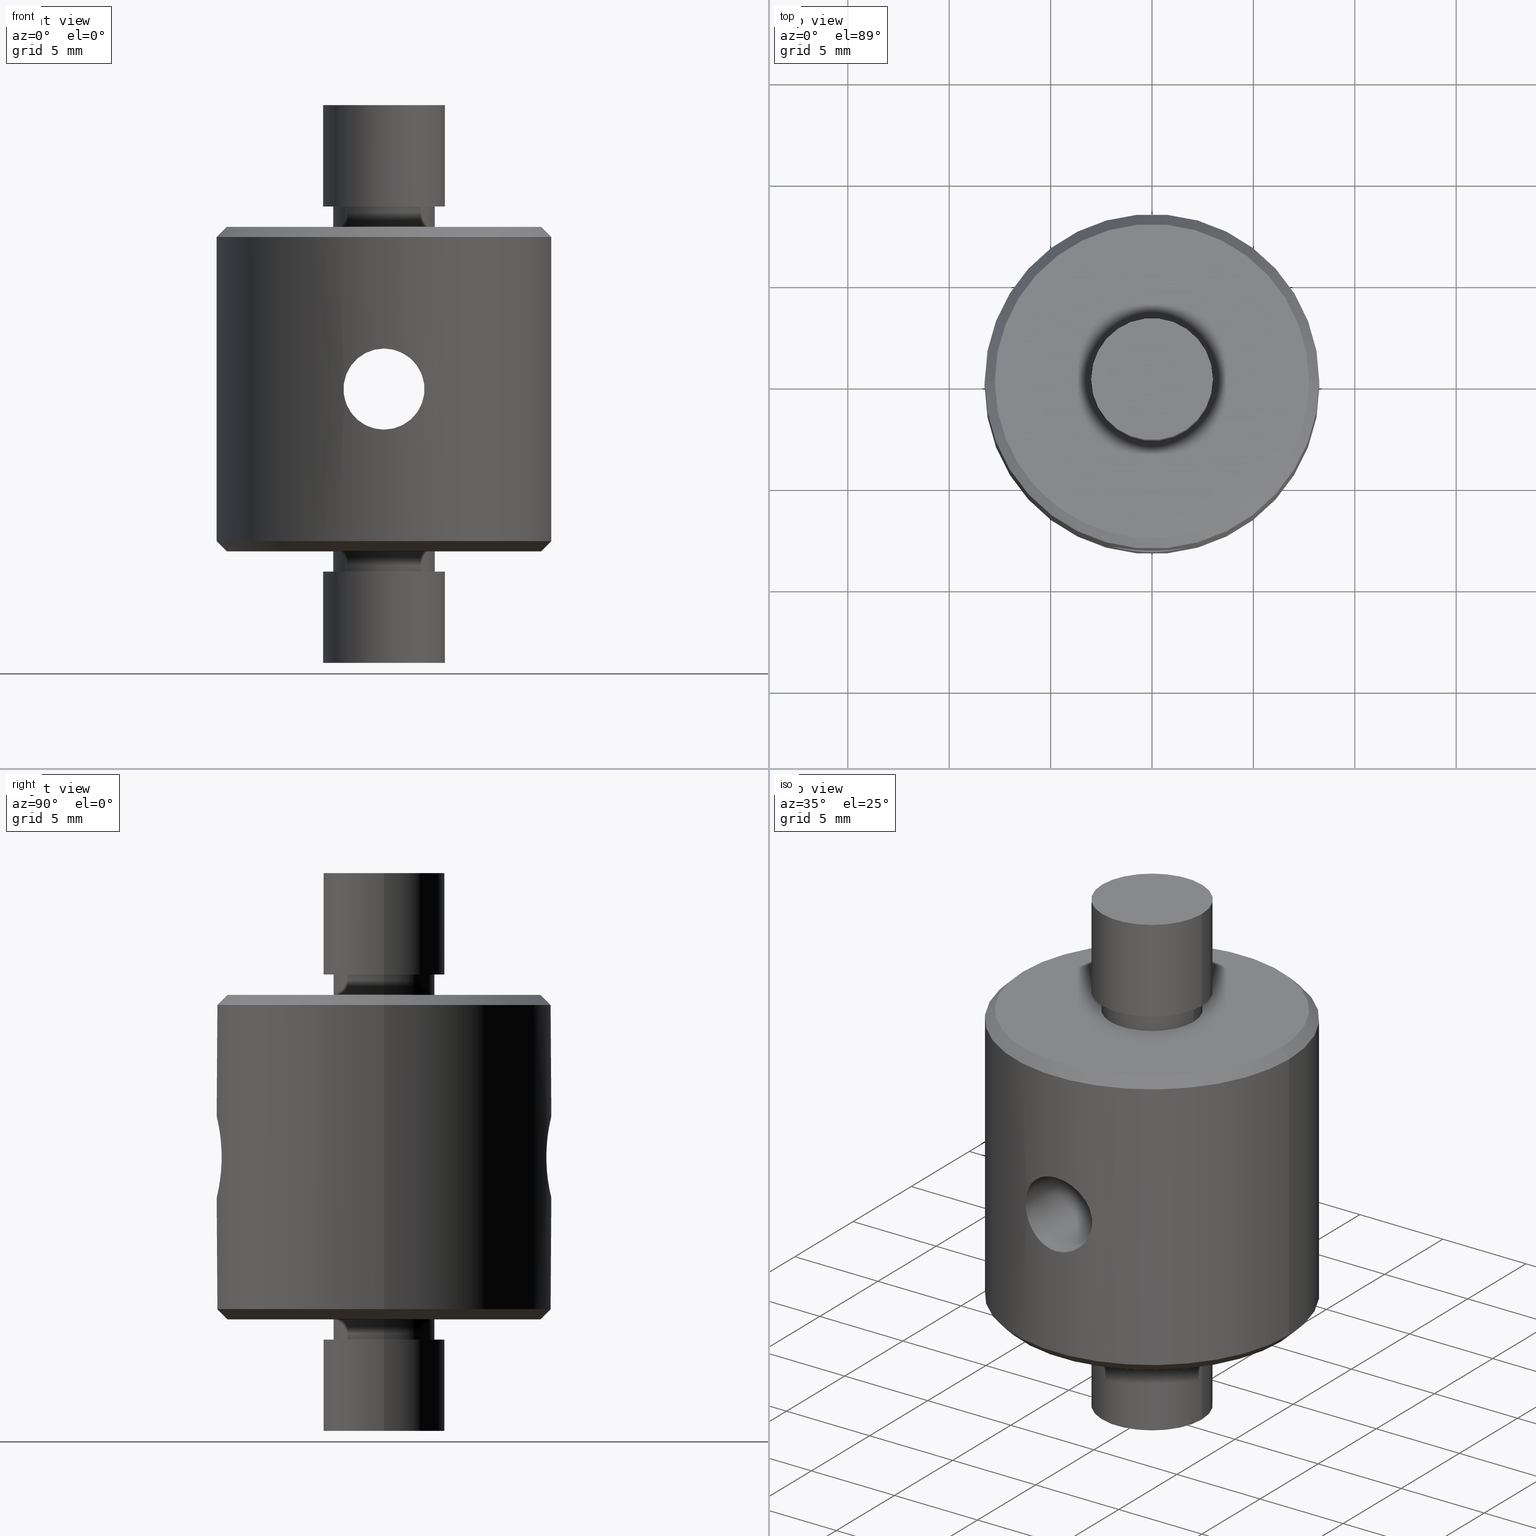
[diagram: canonical four-view strip — front | top / right | iso, engineering-drawing reading convention]
A machine part, canonical four-view strip (front | top / right | iso — engineering-drawing reading convention). The complete STEP part file that produces these views, byte-faithful:
ISO-10303-21;
HEADER;
FILE_DESCRIPTION (( 'STEP AP203' ),
    '1' );
FILE_NAME ('07SRA-1.STEP',
    '2016-04-25T06:13:36',
    ( '' ),
    ( '' ),
    'SwSTEP 2.0',
    'SolidWorks 2016',
    '' );
FILE_SCHEMA (( 'CONFIG_CONTROL_DESIGN' ));
ENDSEC;

DATA;
#1 = CARTESIAN_POINT ( 'NONE',  ( -1.734485429178346700, 8.065947410585693000, -1.004220271036169600 ) ) ;
#2 = CC_DESIGN_SECURITY_CLASSIFICATION ( #406, ( #559 ) ) ;
#3 = PERSON_AND_ORGANIZATION ( #607, #397 ) ;
#4 = CIRCLE ( 'NONE', #578, 7.749999999999991100 ) ;
#5 = ORIENTED_EDGE ( 'NONE', *, *, #19, .F. ) ;
#6 = AXIS2_PLACEMENT_3D ( 'NONE', #533, #10, #188 ) ;
#7 = ORIENTED_EDGE ( 'NONE', *, *, #145, .F. ) ;
#8 = CARTESIAN_POINT ( 'NONE',  ( -7.749999999999991100, 9.797174393178819700E-016, -8.000000000000000000 ) ) ;
#9 = AXIS2_PLACEMENT_3D ( 'NONE', #415, #113, #177 ) ;
#10 = DIRECTION ( 'NONE',  ( 0.0000000000000000000, 0.0000000000000000000, -1.000000000000000000 ) ) ;
#11 = DIRECTION ( 'NONE',  ( 0.0000000000000000000, 0.0000000000000000000, -1.000000000000000000 ) ) ;
#12 = FACE_OUTER_BOUND ( 'NONE', #590, .T. ) ;
#13 = ORIENTED_EDGE ( 'NONE', *, *, #160, .F. ) ;
#14 = CARTESIAN_POINT ( 'NONE',  ( 1.746564404702779300, 8.063665092118787600, -1.009254032915539300 ) ) ;
#15 = EDGE_LOOP ( 'NONE', ( #646, #33 ) ) ;
#16 = DIRECTION ( 'NONE',  ( -0.0000000000000000000, -0.0000000000000000000, 1.000000000000000000 ) ) ;
#17 = DIRECTION ( 'NONE',  ( 0.0000000000000000000, 0.0000000000000000000, 1.000000000000000000 ) ) ;
#18 = DIRECTION ( 'NONE',  ( 1.000000000000000000, 0.0000000000000000000, -0.0000000000000000000 ) ) ;
#19 = EDGE_CURVE ( 'NONE', #66, #226, #692, .T. ) ;
#20 = CARTESIAN_POINT ( 'NONE',  ( -0.5211970916093433500, 8.234531343425429000, 1.935363952460052600 ) ) ;
#21 = CARTESIAN_POINT ( 'NONE',  ( 1.321223466088915300, 8.144060661153183400, -1.507167060968729300 ) ) ;
#22 = EDGE_CURVE ( 'NONE', #470, #651, #70, .T. ) ;
#23 = CARTESIAN_POINT ( 'NONE',  ( -1.746564404702779300, -8.063665092118787600, -1.009254032915539300 ) ) ;
#24 = CIRCLE ( 'NONE', #102, 8.250000000000000000 ) ;
#25 = DIRECTION ( 'NONE',  ( -1.000000000000000000, 0.0000000000000000000, 0.0000000000000000000 ) ) ;
#26 = CARTESIAN_POINT ( 'NONE',  ( -0.8886708092414188400, -8.202897855306337900, 1.796506368153792900 ) ) ;
#27 = COORDINATED_UNIVERSAL_TIME_OFFSET ( 8, 0, .AHEAD. ) ;
#28 = CIRCLE ( 'NONE', #664, 2.500000000000000000 ) ;
#29 = DIRECTION ( 'NONE',  ( 1.000000000000000000, 0.0000000000000000000, 0.0000000000000000000 ) ) ;
#30 = ORIENTED_EDGE ( 'NONE', *, *, #22, .F. ) ;
#31 = AXIS2_PLACEMENT_3D ( 'NONE', #237, #298, #700 ) ;
#32 = CARTESIAN_POINT ( 'NONE',  ( -1.003367067051843800, -8.189490218781173800, 1.735021821357147600 ) ) ;
#33 = ORIENTED_EDGE ( 'NONE', *, *, #721, .T. ) ;
#34 = MECHANICAL_CONTEXT ( 'NONE', #738, 'mechanical' ) ;
#35 = DIRECTION ( 'NONE',  ( -0.7071067811865536800, 0.0000000000000000000, -0.7071067811865414700 ) ) ;
#36 = EDGE_CURVE ( 'NONE', #507, #330, #747, .T. ) ;
#37 = ADVANCED_FACE ( 'NONE', ( #458 ), #294, .T. ) ;
#38 = VECTOR ( 'NONE', #602, 1000.000000000000000 ) ;
#39 = DIRECTION ( 'NONE',  ( 0.0000000000000000000, 0.0000000000000000000, -1.000000000000000000 ) ) ;
#40 = FACE_OUTER_BOUND ( 'NONE', #416, .T. ) ;
#41 = EDGE_LOOP ( 'NONE', ( #239, #736, #539, #241 ) ) ;
#42 = PERSON_AND_ORGANIZATION_ROLE ( 'design_supplier' ) ;
#43 = SECURITY_CLASSIFICATION_LEVEL ( 'unclassified' ) ;
#44 = AXIS2_PLACEMENT_3D ( 'NONE', #431, #11, #663 ) ;
#45 = DIRECTION ( 'NONE',  ( -0.0000000000000000000, -0.0000000000000000000, 1.000000000000000000 ) ) ;
#46 = DIRECTION ( 'NONE',  ( -1.000000000000000000, 0.0000000000000000000, 0.0000000000000000000 ) ) ;
#47 = LINE ( 'NONE', #513, #366 ) ;
#48 = APPROVAL_ROLE ( '' ) ;
#49 = FACE_OUTER_BOUND ( 'NONE', #710, .T. ) ;
#50 = CARTESIAN_POINT ( 'NONE',  ( 0.0000000000000000000, 0.0000000000000000000, 8.000000000000000000 ) ) ;
#51 = EDGE_LOOP ( 'NONE', ( #225, #439 ) ) ;
#52 = CARTESIAN_POINT ( 'NONE',  ( 1.987161606794385400, -8.007145465530605600, 0.2613861231367247700 ) ) ;
#53 = EDGE_LOOP ( 'NONE', ( #719, #417, #564, #454 ) ) ;
#54 = CARTESIAN_POINT ( 'NONE',  ( 1.936141588103510000, -8.019634998458533600, 0.5181599248321968600 ) ) ;
#55 = EDGE_CURVE ( 'NONE', #274, #260, #146, .T. ) ;
#56 = LOCAL_TIME ( 14, 13, 36.00000000000000000, #475 ) ;
#57 = FACE_BOUND ( 'NONE', #110, .T. ) ;
#58 = EDGE_LOOP ( 'NONE', ( #202, #516, #554, #129 ) ) ;
#59 = CARTESIAN_POINT ( 'NONE',  ( -1.796101587691693500, 8.052279829401907600, -0.8895820937560504600 ) ) ;
#60 = AXIS2_PLACEMENT_3D ( 'NONE', #158, #88, #384 ) ;
#61 = CARTESIAN_POINT ( 'NONE',  ( -2.500000000000000000, 3.061616997868383100E-016, -9.000000000000001800 ) ) ;
#62 = CARTESIAN_POINT ( 'NONE',  ( 0.2633971679137698800, -8.246803913401407700, 1.986932804278705100 ) ) ;
#63 = DIRECTION ( 'NONE',  ( -0.0000000000000000000, -0.0000000000000000000, -1.000000000000000000 ) ) ;
#64 = FACE_OUTER_BOUND ( 'NONE', #322, .T. ) ;
#65 = DIRECTION ( 'NONE',  ( -0.0000000000000000000, -0.0000000000000000000, -1.000000000000000000 ) ) ;
#66 = VERTEX_POINT ( 'NONE', #8 ) ;
#67 = CLOSED_SHELL ( 'NONE', ( #154, #734, #385, #743, #693, #37, #156, #394, #577, #95, #258, #103, #208, #446, #442, #100, #333, #86, #327, #579, #168, #631 ) ) ;
#68 = DIRECTION ( 'NONE',  ( 0.7071067811865536800, 8.659560562355009300E-017, -0.7071067811865414700 ) ) ;
#69 = EDGE_CURVE ( 'NONE', #440, #360, #85, .T. ) ;
#70 = B_SPLINE_CURVE_WITH_KNOTS ( 'NONE', 3,
 ( #746, #455, #93, #99, #695, #166, #217, #633, #690, #456, #219, #101, #517, #404, #52, #54, #334, #761, #342, #526, #282, #703, #280, #62, #537, #601 ),
 .UNSPECIFIED., .F., .F.,
 ( 4, 2, 2, 2, 2, 2, 2, 2, 2, 2, 2, 2, 4 ),
 ( 0.006276366173216329500, 0.007060701512947540300, 0.007452869182813145700, 0.007845036852678751900, 0.008237204522544356400, 0.008629372192409962700, 0.009413707532141171700, 0.009805875202006778000, 0.01019804287187238200, 0.01098237821160359300, 0.01176671355133480600, 0.01215888122120041000, 0.01255104889106601500 ),
 .UNSPECIFIED. ) ;
#71 = DIRECTION ( 'NONE',  ( -0.0000000000000000000, -0.0000000000000000000, -1.000000000000000000 ) ) ;
#72 = CARTESIAN_POINT ( 'NONE',  ( -6.789005360349728400E-017, 8.250000000000000000, 2.000000000000000000 ) ) ;
#73 = DIRECTION ( 'NONE',  ( 1.000000000000000000, 0.0000000000000000000, 0.0000000000000000000 ) ) ;
#74 = ORIENTED_EDGE ( 'NONE', *, *, #749, .F. ) ;
#75 = CARTESIAN_POINT ( 'NONE',  ( 0.2630402404011860700, 8.246803709826968600, 1.986929239511523200 ) ) ;
#76 = AXIS2_PLACEMENT_3D ( 'NONE', #324, #571, #511 ) ;
#77 = CARTESIAN_POINT ( 'NONE',  ( 1.004520203861529100, 8.189343423344858800, -1.734320818487681500 ) ) ;
#78 = CARTESIAN_POINT ( 'NONE',  ( -1.599357376057809300, -8.095676499416024200, -1.229142779217262900 ) ) ;
#79 = CARTESIAN_POINT ( 'NONE',  ( -1.897368781442408500, 8.029017936759030900, 0.6457941285481596500 ) ) ;
#80 = CARTESIAN_POINT ( 'NONE',  ( -1.004520203861529100, -8.189343423344858800, -1.734320818487681500 ) ) ;
#81 = LOCAL_TIME ( 14, 13, 36.00000000000000000, #27 ) ;
#82 = COORDINATED_UNIVERSAL_TIME_OFFSET ( 8, 0, .AHEAD. ) ;
#83 = AXIS2_PLACEMENT_3D ( 'NONE', #210, #572, #622 ) ;
#84 = CARTESIAN_POINT ( 'NONE',  ( 3.000000000000000400, 0.0000000000000000000, 9.000000000000001800 ) ) ;
#85 = CIRCLE ( 'NONE', #9, 3.000000000000000400 ) ;
#86 = ADVANCED_FACE ( 'NONE', ( #410 ), #575, .T. ) ;
#87 = ORIENTED_EDGE ( 'NONE', *, *, #69, .F. ) ;
#88 = DIRECTION ( 'NONE',  ( 0.0000000000000000000, 0.0000000000000000000, 1.000000000000000000 ) ) ;
#89 = CARTESIAN_POINT ( 'NONE',  ( -1.999945528447225200, -8.003918908033524500, 0.1318261355252158300 ) ) ;
#90 = CARTESIAN_POINT ( 'NONE',  ( -1.598332908652791100, -8.095838505945714300, 1.229985968183118200 ) ) ;
#91 = APPLICATION_PROTOCOL_DEFINITION ( 'international standard', 'config_control_design', 1994, #450 ) ;
#92 = CARTESIAN_POINT ( 'NONE',  ( -0.2635999258944435300, -8.246795264675656200, -1.986896621537046000 ) ) ;
#93 = CARTESIAN_POINT ( 'NONE',  ( 0.5256441293576987700, -8.236790558271446000, -1.947229364106093600 ) ) ;
#94 = PRODUCT_DEFINITION_SHAPE ( 'NONE', 'NONE',  #235 ) ;
#95 = ADVANCED_FACE ( 'NONE', ( #379 ), #163, .F. ) ;
#96 = CARTESIAN_POINT ( 'NONE',  ( 0.0000000000000000000, 0.0000000000000000000, 9.000000000000001800 ) ) ;
#97 = FACE_BOUND ( 'NONE', #184, .T. ) ;
#98 = ORIENTED_EDGE ( 'NONE', *, *, #178, .T. ) ;
#99 = CARTESIAN_POINT ( 'NONE',  ( 0.8869395704203337800, -8.203076758833363500, -1.797314436934732900 ) ) ;
#100 = ADVANCED_FACE ( 'NONE', ( #248, #97 ), #277, .T. ) ;
#101 = CARTESIAN_POINT ( 'NONE',  ( 1.947787641228585300, -8.017442781952535600, -0.5248544217563377900 ) ) ;
#102 = AXIS2_PLACEMENT_3D ( 'NONE', #363, #16, #423 ) ;
#103 = ADVANCED_FACE ( 'NONE', ( #538, #329 ), #640, .F. ) ;
#104 = CALENDAR_DATE ( 2016, 25, 4 ) ;
#105 = CC_DESIGN_PERSON_AND_ORGANIZATION_ASSIGNMENT ( #659, #209, ( #547 ) ) ;
#106 = PERSON_AND_ORGANIZATION ( #607, #397 ) ;
#107 = CARTESIAN_POINT ( 'NONE',  ( 8.250000000000000000, 0.0000000000000000000, -13.50000000000000000 ) ) ;
#108 = ORIENTED_EDGE ( 'NONE', *, *, #55, .F. ) ;
#109 = ORIENTED_EDGE ( 'NONE', *, *, #343, .T. ) ;
#110 = EDGE_LOOP ( 'NONE', ( #220, #414 ) ) ;
#111 = DIRECTION ( 'NONE',  ( -1.000000000000000000, 0.0000000000000000000, 0.0000000000000000000 ) ) ;
#112 = DIRECTION ( 'NONE',  ( 0.0000000000000000000, 0.0000000000000000000, 1.000000000000000000 ) ) ;
#113 = DIRECTION ( 'NONE',  ( -0.0000000000000000000, -0.0000000000000000000, 1.000000000000000000 ) ) ;
#114 = EDGE_CURVE ( 'NONE', #260, #608, #532, .T. ) ;
#115 = DIRECTION ( 'NONE',  ( 1.000000000000000000, 0.0000000000000000000, 0.0000000000000000000 ) ) ;
#116 = LOCAL_TIME ( 14, 13, 36.00000000000000000, #267 ) ;
#117 = FACE_BOUND ( 'NONE', #599, .T. ) ;
#118 = CARTESIAN_POINT ( 'NONE',  ( 3.000000000000000400, 3.673940397442060400E-016, -9.000000000000001800 ) ) ;
#119 = ORIENTED_EDGE ( 'NONE', *, *, #624, .F. ) ;
#120 = ORIENTED_EDGE ( 'NONE', *, *, #512, .T. ) ;
#121 = EDGE_CURVE ( 'NONE', #360, #195, #753, .T. ) ;
#122 = AXIS2_PLACEMENT_3D ( 'NONE', #619, #265, #688 ) ;
#123 = CC_DESIGN_DATE_AND_TIME_ASSIGNMENT ( #514, #638, ( #406 ) ) ;
#124 = AXIS2_PLACEMENT_3D ( 'NONE', #175, #472, #464 ) ;
#125 = DIRECTION ( 'NONE',  ( 0.0000000000000000000, 0.0000000000000000000, 1.000000000000000000 ) ) ;
#126 = FACE_OUTER_BOUND ( 'NONE', #702, .T. ) ;
#127 = CARTESIAN_POINT ( 'NONE',  ( 0.0000000000000000000, 0.0000000000000000000, 9.000000000000001800 ) ) ;
#128 = VECTOR ( 'NONE', #369, 1000.000000000000000 ) ;
#129 = ORIENTED_EDGE ( 'NONE', *, *, #581, .F. ) ;
#130 = DIRECTION ( 'NONE',  ( -0.0000000000000000000, -0.0000000000000000000, 1.000000000000000000 ) ) ;
#131 = EDGE_LOOP ( 'NONE', ( #141, #203, #567, #618 ) ) ;
#132 = CARTESIAN_POINT ( 'NONE',  ( 0.0000000000000000000, -10.00000000000000000, 0.0000000000000000000 ) ) ;
#133 = AXIS2_PLACEMENT_3D ( 'NONE', #666, #300, #493 ) ;
#134 = DIRECTION ( 'NONE',  ( -0.0000000000000000000, -0.0000000000000000000, -1.000000000000000000 ) ) ;
#135 = CARTESIAN_POINT ( 'NONE',  ( -3.000000000000000400, 3.673940397442060400E-016, 8.000000000000000000 ) ) ;
#136 = CARTESIAN_POINT ( 'NONE',  ( 2.449293598294706400E-016, -10.00000000000000000, -2.000000000000000000 ) ) ;
#137 = DIRECTION ( 'NONE',  ( -0.0000000000000000000, -0.0000000000000000000, 1.000000000000000000 ) ) ;
#138 = CIRCLE ( 'NONE', #76, 7.749999999999989300 ) ;
#139 = LINE ( 'NONE', #612, #38 ) ;
#140 = ORIENTED_EDGE ( 'NONE', *, *, #451, .T. ) ;
#141 = ORIENTED_EDGE ( 'NONE', *, *, #145, .T. ) ;
#142 = DIRECTION ( 'NONE',  ( 0.0000000000000000000, 0.0000000000000000000, 1.000000000000000000 ) ) ;
#143 = CARTESIAN_POINT ( 'NONE',  ( 1.598332908652791100, 8.095838505945714300, 1.229985968183118200 ) ) ;
#144 = CARTESIAN_POINT ( 'NONE',  ( 0.8873435543799543800, 8.203037833527066200, -1.797140462901066500 ) ) ;
#145 = EDGE_CURVE ( 'NONE', #507, #490, #24, .T. ) ;
#146 = CIRCLE ( 'NONE', #357, 3.000000000000000400 ) ;
#147 = CARTESIAN_POINT ( 'NONE',  ( 1.220760633113353400, 8.159911152830549200, -1.589551200196607200 ) ) ;
#148 = ORIENTED_EDGE ( 'NONE', *, *, #535, .F. ) ;
#149 = CARTESIAN_POINT ( 'NONE',  ( -0.2630402404011860700, -8.246803709826968600, 1.986929239511523200 ) ) ;
#150 = ORIENTED_EDGE ( 'NONE', *, *, #343, .F. ) ;
#151 = APPROVAL ( #263, 'UNSPECIFIED' ) ;
#152 = DIRECTION ( 'NONE',  ( 0.0000000000000000000, 0.0000000000000000000, 1.000000000000000000 ) ) ;
#153 = EDGE_CURVE ( 'NONE', #287, #635, #273, .T. ) ;
#154 = ADVANCED_FACE ( 'NONE', ( #40 ), #681, .T. ) ;
#155 = CARTESIAN_POINT ( 'NONE',  ( -0.1326771134377834100, -8.250000000000000000, 2.000000000000000000 ) ) ;
#156 = ADVANCED_FACE ( 'NONE', ( #732 ), #530, .F. ) ;
#157 = CALENDAR_DATE ( 2016, 25, 4 ) ;
#158 = CARTESIAN_POINT ( 'NONE',  ( 0.0000000000000000000, 0.0000000000000000000, 14.00000000000000000 ) ) ;
#159 = FACE_OUTER_BOUND ( 'NONE', #58, .T. ) ;
#160 = EDGE_CURVE ( 'NONE', #360, #440, #162, .T. ) ;
#161 = CARTESIAN_POINT ( 'NONE',  ( 2.500000000000000000, 0.0000000000000000000, -9.000000000000001800 ) ) ;
#162 = CIRCLE ( 'NONE', #413, 3.000000000000000400 ) ;
#163 = CYLINDRICAL_SURFACE ( 'NONE', #656, 2.000000000000000000 ) ;
#164 = VERTEX_POINT ( 'NONE', #489 ) ;
#165 = CARTESIAN_POINT ( 'NONE',  ( 0.0000000000000000000, 0.0000000000000000000, -8.000000000000000000 ) ) ;
#166 = CARTESIAN_POINT ( 'NONE',  ( 1.221030223150371400, -8.159876887627760300, -1.589387696022922700 ) ) ;
#167 = EDGE_CURVE ( 'NONE', #305, #330, #368, .T. ) ;
#168 = ADVANCED_FACE ( 'NONE', ( #438 ), #246, .F. ) ;
#169 = AXIS2_PLACEMENT_3D ( 'NONE', #704, #641, #111 ) ;
#170 = EDGE_LOOP ( 'NONE', ( #120, #348 ) ) ;
#171 = ORIENTED_EDGE ( 'NONE', *, *, #637, .T. ) ;
#172 = PLANE ( 'NONE',  #206 ) ;
#173 = AXIS2_PLACEMENT_3D ( 'NONE', #534, #63, #481 ) ;
#174 = DATE_AND_TIME ( #157, #81 ) ;
#175 = CARTESIAN_POINT ( 'NONE',  ( 0.0000000000000000000, 0.0000000000000000000, -13.50000000000000000 ) ) ;
#176 = LINE ( 'NONE', #61, #257 ) ;
#177 = DIRECTION ( 'NONE',  ( -1.000000000000000000, 0.0000000000000000000, 0.0000000000000000000 ) ) ;
#178 = EDGE_CURVE ( 'NONE', #226, #507, #339, .T. ) ;
#179 = ORIENTED_EDGE ( 'NONE', *, *, #222, .T. ) ;
#180 = DIRECTION ( 'NONE',  ( 1.000000000000000000, 0.0000000000000000000, 0.0000000000000000000 ) ) ;
#181 = CC_DESIGN_PERSON_AND_ORGANIZATION_ASSIGNMENT ( #486, #519, ( #406 ) ) ;
#182 = DIRECTION ( 'NONE',  ( -1.000000000000000000, 0.0000000000000000000, 0.0000000000000000000 ) ) ;
#183 = DIRECTION ( 'NONE',  ( -0.0000000000000000000, 1.000000000000000000, -0.0000000000000000000 ) ) ;
#184 = EDGE_LOOP ( 'NONE', ( #297, #748 ) ) ;
#185 = ORIENTED_EDGE ( 'NONE', *, *, #167, .T. ) ;
#186 = AXIS2_PLACEMENT_3D ( 'NONE', #492, #71, #610 ) ;
#187 = ORIENTED_EDGE ( 'NONE', *, *, #721, .F. ) ;
#188 = DIRECTION ( 'NONE',  ( -1.000000000000000000, 0.0000000000000000000, 0.0000000000000000000 ) ) ;
#189 = DIRECTION ( 'NONE',  ( 1.000000000000000000, 0.0000000000000000000, 0.0000000000000000000 ) ) ;
#190 = CC_DESIGN_APPROVAL ( #151, ( #559 ) ) ;
#191 = CARTESIAN_POINT ( 'NONE',  ( 0.0000000000000000000, -10.00000000000000000, 2.000000000000000000 ) ) ;
#192 = CARTESIAN_POINT ( 'NONE',  ( 2.449279156765281000E-016, 8.250000000000000000, -2.000000000000000000 ) ) ;
#193 = ORIENTED_EDGE ( 'NONE', *, *, #121, .F. ) ;
#194 = CARTESIAN_POINT ( 'NONE',  ( -1.003891274059350200, 8.189426593904842700, -1.734724866940920800 ) ) ;
#195 = VERTEX_POINT ( 'NONE', #720 ) ;
#196 = CARTESIAN_POINT ( 'NONE',  ( 0.0000000000000000000, -10.00000000000000000, 0.0000000000000000000 ) ) ;
#197 = CARTESIAN_POINT ( 'NONE',  ( 1.987145896334996400, 8.007150238837752500, 0.2619363400058078400 ) ) ;
#198 = DIRECTION ( 'NONE',  ( 0.0000000000000000000, 0.0000000000000000000, 1.000000000000000000 ) ) ;
#199 = CARTESIAN_POINT ( 'NONE',  ( -1.009530896751481100, 8.191567199673246000, 1.746084158701253200 ) ) ;
#200 = CYLINDRICAL_SURFACE ( 'NONE', #124, 8.250000000000000000 ) ;
#201 = DIRECTION ( 'NONE',  ( -0.0000000000000000000, -0.0000000000000000000, -1.000000000000000000 ) ) ;
#202 = ORIENTED_EDGE ( 'NONE', *, *, #548, .F. ) ;
#203 = ORIENTED_EDGE ( 'NONE', *, *, #255, .T. ) ;
#204 = CARTESIAN_POINT ( 'NONE',  ( 0.0000000000000000000, 0.0000000000000000000, 8.000000000000000000 ) ) ;
#205 = CC_DESIGN_APPROVAL ( #350, ( #406 ) ) ;
#206 = AXIS2_PLACEMENT_3D ( 'NONE', #527, #756, #587 ) ;
#207 = DIRECTION ( 'NONE',  ( 0.0000000000000000000, 0.0000000000000000000, -1.000000000000000000 ) ) ;
#208 = ADVANCED_FACE ( 'NONE', ( #247 ), #312, .T. ) ;
#209 = PERSON_AND_ORGANIZATION_ROLE ( 'design_owner' ) ;
#210 = CARTESIAN_POINT ( 'NONE',  ( 0.0000000000000000000, 0.0000000000000000000, -9.000000000000001800 ) ) ;
#211 = LINE ( 'NONE', #544, #448 ) ;
#212 = FACE_OUTER_BOUND ( 'NONE', #271, .T. ) ;
#213 = ORIENTED_EDGE ( 'NONE', *, *, #388, .F. ) ;
#214 = CARTESIAN_POINT ( 'NONE',  ( -2.500000000000000000, 0.0000000000000000000, 8.000000000000000000 ) ) ;
#215 = ORIENTED_EDGE ( 'NONE', *, *, #707, .T. ) ;
#216 = CARTESIAN_POINT ( 'NONE',  ( 0.0000000000000000000, 0.0000000000000000000, 0.0000000000000000000 ) ) ;
#217 = CARTESIAN_POINT ( 'NONE',  ( 1.321366810000156500, -8.144031804710421000, -1.506980075174842300 ) ) ;
#218 = VECTOR ( 'NONE', #256, 1000.000000000000000 ) ;
#219 = CARTESIAN_POINT ( 'NONE',  ( 1.796101587691693500, -8.052279829401907600, -0.8895820937560504600 ) ) ;
#220 = ORIENTED_EDGE ( 'NONE', *, *, #660, .F. ) ;
#221 = ORIENTED_EDGE ( 'NONE', *, *, #739, .T. ) ;
#222 = EDGE_CURVE ( 'NONE', #317, #305, #745, .T. ) ;
#223 = CC_DESIGN_PERSON_AND_ORGANIZATION_ASSIGNMENT ( #495, #750, ( #559 ) ) ;
#224 = DIRECTION ( 'NONE',  ( -0.0000000000000000000, -0.0000000000000000000, -1.000000000000000000 ) ) ;
#225 = ORIENTED_EDGE ( 'NONE', *, *, #451, .F. ) ;
#226 = VERTEX_POINT ( 'NONE', #668 ) ;
#227 = AXIS2_PLACEMENT_3D ( 'NONE', #600, #125, #596 ) ;
#228 = DIRECTION ( 'NONE',  ( -0.0000000000000000000, -0.0000000000000000000, -1.000000000000000000 ) ) ;
#229 = DIRECTION ( 'NONE',  ( -0.0000000000000000000, -0.0000000000000000000, -1.000000000000000000 ) ) ;
#230 = CARTESIAN_POINT ( 'NONE',  ( 2.449279156765281000E-016, 8.250000000000000000, -2.000000000000000000 ) ) ;
#231 = LINE ( 'NONE', #136, #604 ) ;
#232 = CIRCLE ( 'NONE', #351, 2.500000000000000000 ) ;
#233 = ORIENTED_EDGE ( 'NONE', *, *, #697, .F. ) ;
#234 = CARTESIAN_POINT ( 'NONE',  ( -1.221030223150371400, 8.159876887627760300, -1.589387696022922700 ) ) ;
#235 = PRODUCT_DEFINITION ( 'UNKNOWN', '', #559, #765 ) ;
#236 = CARTESIAN_POINT ( 'NONE',  ( -1.999909263040937000, 8.003927969961225100, -0.2645583643814337600 ) ) ;
#237 = CARTESIAN_POINT ( 'NONE',  ( 0.0000000000000000000, 0.0000000000000000000, -8.000000000000000000 ) ) ;
#238 = DIRECTION ( 'NONE',  ( 0.0000000000000000000, 0.0000000000000000000, 1.000000000000000000 ) ) ;
#239 = ORIENTED_EDGE ( 'NONE', *, *, #255, .F. ) ;
#240 = AXIS2_PLACEMENT_3D ( 'NONE', #386, #315, #433 ) ;
#241 = ORIENTED_EDGE ( 'NONE', *, *, #749, .T. ) ;
#242 = CARTESIAN_POINT ( 'NONE',  ( -0.5256441293576987700, 8.236790558271446000, -1.947229364106093600 ) ) ;
#243 = CARTESIAN_POINT ( 'NONE',  ( 8.250000000000000000, 1.010333609296566500E-015, 7.499999999999998200 ) ) ;
#244 = CARTESIAN_POINT ( 'NONE',  ( 0.5193570997923324700, 8.234635984631101000, 1.935806336850731900 ) ) ;
#245 = APPROVAL_PERSON_ORGANIZATION ( #715, #151, #48 ) ;
#246 = PLANE ( 'NONE',  #735 ) ;
#247 = FACE_OUTER_BOUND ( 'NONE', #261, .T. ) ;
#248 = FACE_OUTER_BOUND ( 'NONE', #661, .T. ) ;
#249 = CARTESIAN_POINT ( 'NONE',  ( -1.747216188800824900, 8.063515664767722400, 1.007704811256960700 ) ) ;
#250 = ORIENTED_EDGE ( 'NONE', *, *, #167, .F. ) ;
#251 = CARTESIAN_POINT ( 'NONE',  ( 3.000000000000000400, 3.673940397442060400E-016, -8.000000000000000000 ) ) ;
#252 = CARTESIAN_POINT ( 'NONE',  ( 0.8886708092414188400, 8.202897855306337900, 1.796506368153792900 ) ) ;
#253 = PLANE ( 'NONE',  #133 ) ;
#254 = CARTESIAN_POINT ( 'NONE',  ( 1.747129177818576000, 8.063531605375777300, 1.007640096485658400 ) ) ;
#255 = EDGE_CURVE ( 'NONE', #490, #477, #409, .T. ) ;
#256 = DIRECTION ( 'NONE',  ( 0.0000000000000000000, 0.0000000000000000000, -1.000000000000000000 ) ) ;
#257 = VECTOR ( 'NONE', #238, 1000.000000000000000 ) ;
#258 = ADVANCED_FACE ( 'NONE', ( #644, #284 ), #253, .T. ) ;
#259 = CARTESIAN_POINT ( 'NONE',  ( 7.749999999999989300, 9.797174393178819700E-016, 8.000000000000000000 ) ) ;
#260 = VERTEX_POINT ( 'NONE', #552 ) ;
#261 = EDGE_LOOP ( 'NONE', ( #566, #213, #461, #140 ) ) ;
#262 = APPROVAL_ROLE ( '' ) ;
#263 = APPROVAL_STATUS ( 'not_yet_approved' ) ;
#264 = CARTESIAN_POINT ( 'NONE',  ( -0.5193570997923324700, -8.234635984631101000, 1.935806336850731900 ) ) ;
#265 = DIRECTION ( 'NONE',  ( 0.0000000000000000000, 0.0000000000000000000, 1.000000000000000000 ) ) ;
#266 = EDGE_CURVE ( 'NONE', #682, #286, #139, .T. ) ;
#267 = COORDINATED_UNIVERSAL_TIME_OFFSET ( 8, 0, .AHEAD. ) ;
#268 = VECTOR ( 'NONE', #654, 1000.000000000000000 ) ;
#269 = CARTESIAN_POINT ( 'NONE',  ( 0.0000000000000000000, 0.0000000000000000000, 7.499999999999998200 ) ) ;
#270 = ORIENTED_EDGE ( 'NONE', *, *, #153, .T. ) ;
#271 = EDGE_LOOP ( 'NONE', ( #636, #108, #617, #683 ) ) ;
#272 = CALENDAR_DATE ( 2016, 25, 4 ) ;
#273 = LINE ( 'NONE', #584, #128 ) ;
#274 = VERTEX_POINT ( 'NONE', #84 ) ;
#275 = VERTEX_POINT ( 'NONE', #421 ) ;
#276 = CARTESIAN_POINT ( 'NONE',  ( 0.0000000000000000000, 0.0000000000000000000, -8.000000000000000000 ) ) ;
#277 = PLANE ( 'NONE',  #31 ) ;
#278 = EDGE_CURVE ( 'NONE', #440, #500, #358, .T. ) ;
#279 = CARTESIAN_POINT ( 'NONE',  ( 2.449308039802920400E-016, -8.250000000000000000, -2.000000000000000000 ) ) ;
#280 = CARTESIAN_POINT ( 'NONE',  ( 0.5211970916093433500, -8.234531343425429000, 1.935363952460052600 ) ) ;
#281 = DIRECTION ( 'NONE',  ( 1.000000000000000000, 0.0000000000000000000, 0.0000000000000000000 ) ) ;
#282 = CARTESIAN_POINT ( 'NONE',  ( 1.009530896751481100, -8.191567199673246000, 1.746084158701253200 ) ) ;
#283 = CYLINDRICAL_SURFACE ( 'NONE', #122, 2.500000000000000000 ) ;
#284 = FACE_BOUND ( 'NONE', #51, .T. ) ;
#285 = CARTESIAN_POINT ( 'NONE',  ( 8.250000000000000000, 0.0000000000000000000, -7.499999999999996400 ) ) ;
#286 = VERTEX_POINT ( 'NONE', #214 ) ;
#287 = VERTEX_POINT ( 'NONE', #161 ) ;
#288 = AXIS2_PLACEMENT_3D ( 'NONE', #662, #499, #25 ) ;
#289 = DIRECTION ( 'NONE',  ( 0.0000000000000000000, 0.0000000000000000000, -1.000000000000000000 ) ) ;
#290 = CARTESIAN_POINT ( 'NONE',  ( -0.2615629039225235700, 8.250000000000000000, -2.000000000000000400 ) ) ;
#291 = CARTESIAN_POINT ( 'NONE',  ( -1.987161606794385400, 8.007145465530605600, 0.2613861231367247700 ) ) ;
#292 = APPROVAL_PERSON_ORGANIZATION ( #642, #350, #331 ) ;
#293 = CIRCLE ( 'NONE', #173, 3.000000000000000400 ) ;
#294 = CYLINDRICAL_SURFACE ( 'NONE', #485, 2.500000000000000000 ) ;
#295 = ORIENTED_EDGE ( 'NONE', *, *, #55, .T. ) ;
#296 = DIRECTION ( 'NONE',  ( -1.000000000000000000, 0.0000000000000000000, 0.0000000000000000000 ) ) ;
#297 = ORIENTED_EDGE ( 'NONE', *, *, #634, .F. ) ;
#298 = DIRECTION ( 'NONE',  ( 0.0000000000000000000, 0.0000000000000000000, -1.000000000000000000 ) ) ;
#299 = DIRECTION ( 'NONE',  ( 0.0000000000000000000, 0.0000000000000000000, 1.000000000000000000 ) ) ;
#300 = DIRECTION ( 'NONE',  ( 0.0000000000000000000, 0.0000000000000000000, 1.000000000000000000 ) ) ;
#301 = DIRECTION ( 'NONE',  ( 0.0000000000000000000, 0.0000000000000000000, 1.000000000000000000 ) ) ;
#302 = FACE_OUTER_BOUND ( 'NONE', #401, .T. ) ;
#303 = CARTESIAN_POINT ( 'NONE',  ( 0.2635999258944435300, 8.246795264675656200, -1.986896621537046000 ) ) ;
#304 = VECTOR ( 'NONE', #68, 1000.000000000000000 ) ;
#305 = VERTEX_POINT ( 'NONE', #259 ) ;
#306 = ORIENTED_EDGE ( 'NONE', *, *, #69, .T. ) ;
#307 = CARTESIAN_POINT ( 'NONE',  ( -2.500000000000000000, 0.0000000000000000000, 9.000000000000001800 ) ) ;
#308 = CARTESIAN_POINT ( 'NONE',  ( 0.0000000000000000000, 0.0000000000000000000, 8.000000000000000000 ) ) ;
#309 = CARTESIAN_POINT ( 'NONE',  ( 1.003367067051843800, 8.189490218781173800, 1.735021821357147600 ) ) ;
#310 = CARTESIAN_POINT ( 'NONE',  ( -1.747129177818576000, -8.063531605375777300, 1.007640096485658400 ) ) ;
#311 = APPROVAL ( #621, 'UNSPECIFIED' ) ;
#312 = CYLINDRICAL_SURFACE ( 'NONE', #44, 2.500000000000000000 ) ;
#313 = EDGE_LOOP ( 'NONE', ( #109, #576, #701, #670 ) ) ;
#314 = CARTESIAN_POINT ( 'NONE',  ( 0.6458375426091315100, 8.225576098385614500, -1.897362984632226000 ) ) ;
#315 = DIRECTION ( 'NONE',  ( -0.0000000000000000000, -0.0000000000000000000, 1.000000000000000000 ) ) ;
#316 = AXIS2_PLACEMENT_3D ( 'NONE', #709, #405, #180 ) ;
#317 = VERTEX_POINT ( 'NONE', #374 ) ;
#318 = DIRECTION ( 'NONE',  ( 0.0000000000000000000, 0.0000000000000000000, 1.000000000000000000 ) ) ;
#319 = EDGE_CURVE ( 'NONE', #582, #716, #488, .T. ) ;
#320 = CARTESIAN_POINT ( 'NONE',  ( 2.500000000000000000, 3.061616997868383100E-016, 8.000000000000000000 ) ) ;
#321 = CONICAL_SURFACE ( 'NONE', #240, 8.250000000000000000, 0.7853981633974533900 ) ;
#322 = EDGE_LOOP ( 'NONE', ( #616, #148, #270, #598 ) ) ;
#323 = CARTESIAN_POINT ( 'NONE',  ( 0.0000000000000000000, 0.0000000000000000000, -7.499999999999996400 ) ) ;
#324 = CARTESIAN_POINT ( 'NONE',  ( 0.0000000000000000000, 0.0000000000000000000, 8.000000000000000000 ) ) ;
#325 = CC_DESIGN_PERSON_AND_ORGANIZATION_ASSIGNMENT ( #106, #623, ( #235 ) ) ;
#326 = DIRECTION ( 'NONE',  ( -1.000000000000000000, 0.0000000000000000000, 0.0000000000000000000 ) ) ;
#327 = ADVANCED_FACE ( 'NONE', ( #12, #650 ), #740, .F. ) ;
#328 = CIRCLE ( 'NONE', #483, 3.000000000000000400 ) ;
#329 = FACE_BOUND ( 'NONE', #15, .T. ) ;
#330 = VERTEX_POINT ( 'NONE', #506 ) ;
#331 = APPROVAL_ROLE ( '' ) ;
#332 = AXIS2_PLACEMENT_3D ( 'NONE', #389, #39, #326 ) ;
#333 = ADVANCED_FACE ( 'NONE', ( #606 ), #321, .T. ) ;
#334 = CARTESIAN_POINT ( 'NONE',  ( 1.897368781442408500, -8.029017936759030900, 0.6457941285481596500 ) ) ;
#335 = DIRECTION ( 'NONE',  ( -1.000000000000000000, 0.0000000000000000000, 0.0000000000000000000 ) ) ;
#336 = AXIS2_PLACEMENT_3D ( 'NONE', #639, #45, #412 ) ;
#337 = CARTESIAN_POINT ( 'NONE',  ( -8.250000000000000000, 1.010333609296566500E-015, -7.499999999999996400 ) ) ;
#338 = CIRCLE ( 'NONE', #60, 3.000000000000000400 ) ;
#339 = LINE ( 'NONE', #361, #476 ) ;
#340 = ORIENTED_EDGE ( 'NONE', *, *, #19, .T. ) ;
#341 = ORIENTED_EDGE ( 'NONE', *, *, #739, .F. ) ;
#342 = CARTESIAN_POINT ( 'NONE',  ( 1.598501874800889500, -8.095799503385800100, 1.229709723365947300 ) ) ;
#343 = EDGE_CURVE ( 'NONE', #651, #470, #593, .T. ) ;
#344 = CARTESIAN_POINT ( 'NONE',  ( -8.250000000000000000, 1.010333609296566500E-015, 7.499999999999998200 ) ) ;
#345 = VECTOR ( 'NONE', #647, 1000.000000000000000 ) ;
#346 = CARTESIAN_POINT ( 'NONE',  ( -1.589900384508794200, 8.095687994340249100, -1.220292925543182900 ) ) ;
#347 = ORIENTED_EDGE ( 'NONE', *, *, #178, .F. ) ;
#348 = ORIENTED_EDGE ( 'NONE', *, *, #624, .T. ) ;
#349 = CARTESIAN_POINT ( 'NONE',  ( 0.0000000000000000000, 0.0000000000000000000, 14.00000000000000000 ) ) ;
#350 = APPROVAL ( #752, 'UNSPECIFIED' ) ;
#351 = AXIS2_PLACEMENT_3D ( 'NONE', #50, #764, #281 ) ;
#352 = CARTESIAN_POINT ( 'NONE',  ( 0.0000000000000000000, 0.0000000000000000000, -9.000000000000001800 ) ) ;
#353 = CARTESIAN_POINT ( 'NONE',  ( 0.0000000000000000000, 0.0000000000000000000, 7.499999999999998200 ) ) ;
#354 = MANIFOLD_SOLID_BREP ( '����6', #67 ) ;
#355 = DIRECTION ( 'NONE',  ( 1.000000000000000000, 0.0000000000000000000, 0.0000000000000000000 ) ) ;
#356 = DIRECTION ( 'NONE',  ( -0.0000000000000000000, 1.000000000000000000, -0.0000000000000000000 ) ) ;
#357 = AXIS2_PLACEMENT_3D ( 'NONE', #127, #229, #189 ) ;
#358 = LINE ( 'NONE', #251, #762 ) ;
#359 = VERTEX_POINT ( 'NONE', #376 ) ;
#360 = VERTEX_POINT ( 'NONE', #737 ) ;
#361 = CARTESIAN_POINT ( 'NONE',  ( 8.250000000000000000, 0.0000000000000000000, -7.499999999999996400 ) ) ;
#362 = CARTESIAN_POINT ( 'NONE',  ( 0.1326771134377834100, 8.250000000000000000, 2.000000000000000000 ) ) ;
#363 = CARTESIAN_POINT ( 'NONE',  ( 0.0000000000000000000, 0.0000000000000000000, -7.499999999999996400 ) ) ;
#364 = CARTESIAN_POINT ( 'NONE',  ( -1.231581452474026900, 8.159680445255538900, 1.597060228483784700 ) ) ;
#365 = CC_DESIGN_PERSON_AND_ORGANIZATION_ASSIGNMENT ( #3, #42, ( #559 ) ) ;
#366 = VECTOR ( 'NONE', #35, 1000.000000000000000 ) ;
#367 = CARTESIAN_POINT ( 'NONE',  ( 0.6466695324974537400, 8.225514424492038400, 1.897100275092082700 ) ) ;
#368 = LINE ( 'NONE', #243, #304 ) ;
#369 = DIRECTION ( 'NONE',  ( 0.0000000000000000000, 0.0000000000000000000, 1.000000000000000000 ) ) ;
#370 = VERTEX_POINT ( 'NONE', #230 ) ;
#371 = CARTESIAN_POINT ( 'NONE',  ( -2.000054127914221900, -8.003891771416318700, -0.1301680920073833000 ) ) ;
#372 = CARTESIAN_POINT ( 'NONE',  ( -0.6485373955294846400, 8.225357481663911200, 1.896415006476869200 ) ) ;
#373 = AXIS2_PLACEMENT_3D ( 'NONE', #196, #356, #198 ) ;
#374 = CARTESIAN_POINT ( 'NONE',  ( -7.749999999999989300, 0.0000000000000000000, 8.000000000000000000 ) ) ;
#375 =( NAMED_UNIT ( * ) SI_UNIT ( $, .STERADIAN. ) SOLID_ANGLE_UNIT ( ) );
#376 = CARTESIAN_POINT ( 'NONE',  ( -2.500000000000000000, 3.061616997868383100E-016, -8.000000000000000000 ) ) ;
#377 = AXIS2_PLACEMENT_3D ( 'NONE', #418, #134, #540 ) ;
#378 = CYLINDRICAL_SURFACE ( 'NONE', #227, 8.250000000000000000 ) ;
#379 = FACE_OUTER_BOUND ( 'NONE', #393, .T. ) ;
#380 = DIRECTION ( 'NONE',  ( 1.000000000000000000, 0.0000000000000000000, 0.0000000000000000000 ) ) ;
#381 = ORIENTED_EDGE ( 'NONE', *, *, #22, .T. ) ;
#382 = CARTESIAN_POINT ( 'NONE',  ( -1.322777905114126900, -8.143798310005646400, 1.505703159970232600 ) ) ;
#383 = ORIENTED_EDGE ( 'NONE', *, *, #424, .F. ) ;
#384 = DIRECTION ( 'NONE',  ( 1.000000000000000000, 0.0000000000000000000, 0.0000000000000000000 ) ) ;
#385 = ADVANCED_FACE ( 'NONE', ( #468 ), #449, .T. ) ;
#386 = CARTESIAN_POINT ( 'NONE',  ( 0.0000000000000000000, 0.0000000000000000000, -7.499999999999996400 ) ) ;
#387 = PRODUCT_RELATED_PRODUCT_CATEGORY ( 'detail', '', ( #547 ) ) ;
#388 = EDGE_CURVE ( 'NONE', #682, #582, #589, .T. ) ;
#389 = CARTESIAN_POINT ( 'NONE',  ( 0.0000000000000000000, 0.0000000000000000000, -8.000000000000000000 ) ) ;
#390 = CARTESIAN_POINT ( 'NONE',  ( -2.500000000000000000, 3.061616997868383100E-016, -9.000000000000001800 ) ) ;
#391 = CIRCLE ( 'NONE', #674, 2.500000000000000000 ) ;
#392 = ORIENTED_EDGE ( 'NONE', *, *, #444, .F. ) ;
#393 = EDGE_LOOP ( 'NONE', ( #428, #381, #727, #459 ) ) ;
#394 = ADVANCED_FACE ( 'NONE', ( #57, #497 ), #200, .T. ) ;
#395 = B_SPLINE_CURVE_WITH_KNOTS ( 'NONE', 3,
 ( #192, #290, #242, #487, #194, #234, #712, #594, #346, #1, #59, #474, #236, #653, #291, #491, #79, #249, #728, #364, #199, #372, #20, #430, #501, #613 ),
 .UNSPECIFIED., .F., .F.,
 ( 4, 2, 2, 2, 2, 2, 2, 2, 2, 2, 2, 2, 4 ),
 ( 0.006276366173216329500, 0.007060701512947540300, 0.007452869182813145700, 0.007845036852678751900, 0.008237204522544356400, 0.008629372192409962700, 0.009413707532141171700, 0.009805875202006778000, 0.01019804287187238200, 0.01098237821160359300, 0.01176671355133480600, 0.01215888122120041000, 0.01255104889106601500 ),
 .UNSPECIFIED. ) ;
#396 = DIRECTION ( 'NONE',  ( 0.0000000000000000000, 0.0000000000000000000, 1.000000000000000000 ) ) ;
#397 = ORGANIZATION ( 'UNSPECIFIED', 'UNSPECIFIED', '' ) ;
#398 = VECTOR ( 'NONE', #396, 1000.000000000000000 ) ;
#399 = DIRECTION ( 'NONE',  ( 0.0000000000000000000, 0.0000000000000000000, 1.000000000000000000 ) ) ;
#400 = EDGE_LOOP ( 'NONE', ( #250, #524, #469, #74 ) ) ;
#401 = EDGE_LOOP ( 'NONE', ( #543, #13, #592, #119 ) ) ;
#402 = AXIS2_PLACEMENT_3D ( 'NONE', #353, #224, #597 ) ;
#403 = CARTESIAN_POINT ( 'NONE',  ( 3.000000000000000400, 3.673940397442060400E-016, -13.50000000000000000 ) ) ;
#404 = CARTESIAN_POINT ( 'NONE',  ( 2.000045191572576500, -8.003894004411135300, 0.1312489192629629500 ) ) ;
#405 = DIRECTION ( 'NONE',  ( -0.0000000000000000000, -0.0000000000000000000, -1.000000000000000000 ) ) ;
#406 = SECURITY_CLASSIFICATION ( '', '', #43 ) ;
#407 = EDGE_CURVE ( 'NONE', #477, #330, #626, .T. ) ;
#408 = DATE_AND_TIME ( #580, #116 ) ;
#409 = LINE ( 'NONE', #725, #522 ) ;
#410 = FACE_OUTER_BOUND ( 'NONE', #400, .T. ) ;
#411 = EDGE_LOOP ( 'NONE', ( #187, #717, #426, #452 ) ) ;
#412 = DIRECTION ( 'NONE',  ( 1.000000000000000000, 0.0000000000000000000, 0.0000000000000000000 ) ) ;
#413 = AXIS2_PLACEMENT_3D ( 'NONE', #605, #723, #496 ) ;
#414 = ORIENTED_EDGE ( 'NONE', *, *, #632, .F. ) ;
#415 = CARTESIAN_POINT ( 'NONE',  ( 0.0000000000000000000, 0.0000000000000000000, -9.000000000000001800 ) ) ;
#416 = EDGE_LOOP ( 'NONE', ( #87, #482, #541, #193 ) ) ;
#417 = ORIENTED_EDGE ( 'NONE', *, *, #591, .T. ) ;
#418 = CARTESIAN_POINT ( 'NONE',  ( 0.0000000000000000000, 0.0000000000000000000, -8.000000000000000000 ) ) ;
#419 = DIRECTION ( 'NONE',  ( 0.0000000000000000000, 0.0000000000000000000, 1.000000000000000000 ) ) ;
#420 = CARTESIAN_POINT ( 'NONE',  ( 2.500000000000000000, 3.061616997868383100E-016, 9.000000000000001800 ) ) ;
#421 = CARTESIAN_POINT ( 'NONE',  ( -6.789005360349728400E-017, 8.250000000000000000, 2.000000000000000000 ) ) ;
#422 = CARTESIAN_POINT ( 'NONE',  ( 2.449279156765281000E-016, 8.250000000000000000, -2.000000000000000000 ) ) ;
#423 = DIRECTION ( 'NONE',  ( -1.000000000000000000, 0.0000000000000000000, 0.0000000000000000000 ) ) ;
#424 = EDGE_CURVE ( 'NONE', #226, #66, #4, .T. ) ;
#425 = LINE ( 'NONE', #758, #345 ) ;
#426 = ORIENTED_EDGE ( 'NONE', *, *, #671, .T. ) ;
#427 = CARTESIAN_POINT ( 'NONE',  ( 1.896948438408481600, 8.029116526787948500, 0.6469438569360429500 ) ) ;
#428 = ORIENTED_EDGE ( 'NONE', *, *, #620, .F. ) ;
#429 = CARTESIAN_POINT ( 'NONE',  ( 0.0000000000000000000, 0.0000000000000000000, -13.50000000000000000 ) ) ;
#430 = CARTESIAN_POINT ( 'NONE',  ( -0.2633971679137698800, 8.246803913401407700, 1.986932804278705100 ) ) ;
#431 = CARTESIAN_POINT ( 'NONE',  ( 0.0000000000000000000, 0.0000000000000000000, 9.000000000000001800 ) ) ;
#432 = CARTESIAN_POINT ( 'NONE',  ( 1.599357376057809300, 8.095676499416024200, -1.229142779217262900 ) ) ;
#433 = DIRECTION ( 'NONE',  ( 1.000000000000000000, 0.0000000000000000000, 0.0000000000000000000 ) ) ;
#434 = CC_DESIGN_DATE_AND_TIME_ASSIGNMENT ( #408, #630, ( #235 ) ) ;
#435 = CARTESIAN_POINT ( 'NONE',  ( 1.986918607695745900, 8.007206264713762100, -0.2632750207901880000 ) ) ;
#436 = LOCAL_TIME ( 14, 13, 36.00000000000000000, #724 ) ;
#437 = CARTESIAN_POINT ( 'NONE',  ( -1.220760633113353400, -8.159911152830549200, -1.589551200196607200 ) ) ;
#438 = FACE_OUTER_BOUND ( 'NONE', #170, .T. ) ;
#439 = ORIENTED_EDGE ( 'NONE', *, *, #671, .F. ) ;
#440 = VERTEX_POINT ( 'NONE', #118 ) ;
#441 = APPLICATION_PROTOCOL_DEFINITION ( 'international standard', 'config_control_design', 1994, #738 ) ;
#442 = ADVANCED_FACE ( 'NONE', ( #212 ), #551, .T. ) ;
#443 = DIRECTION ( 'NONE',  ( -1.000000000000000000, 0.0000000000000000000, 0.0000000000000000000 ) ) ;
#444 = EDGE_CURVE ( 'NONE', #490, #507, #708, .T. ) ;
#445 = CARTESIAN_POINT ( 'NONE',  ( -1.987145896334996400, -8.007150238837752500, 0.2619363400058078400 ) ) ;
#446 = ADVANCED_FACE ( 'NONE', ( #49 ), #172, .T. ) ;
#447 =( NAMED_UNIT ( * ) PLANE_ANGLE_UNIT ( ) SI_UNIT ( $, .RADIAN. ) );
#448 = VECTOR ( 'NONE', #130, 1000.000000000000000 ) ;
#449 = CONICAL_SURFACE ( 'NONE', #685, 8.250000000000000000, 0.7853981633974569400 ) ;
#450 = APPLICATION_CONTEXT ( 'configuration controlled 3d designs of mechanical parts and assemblies' ) ;
#451 = EDGE_CURVE ( 'NONE', #286, #716, #232, .T. ) ;
#452 = ORIENTED_EDGE ( 'NONE', *, *, #266, .F. ) ;
#453 = CARTESIAN_POINT ( 'NONE',  ( -0.5211225312989512500, -8.234533888799106200, -1.935374489079428200 ) ) ;
#454 = ORIENTED_EDGE ( 'NONE', *, *, #153, .F. ) ;
#455 = CARTESIAN_POINT ( 'NONE',  ( 0.2615629039225235700, -8.250000000000000000, -2.000000000000000400 ) ) ;
#456 = CARTESIAN_POINT ( 'NONE',  ( 1.734485429178346700, -8.065947410585693000, -1.004220271036169600 ) ) ;
#457 = CIRCLE ( 'NONE', #741, 3.000000000000000400 ) ;
#458 = FACE_OUTER_BOUND ( 'NONE', #411, .T. ) ;
#459 = ORIENTED_EDGE ( 'NONE', *, *, #660, .T. ) ;
#460 = AXIS2_PLACEMENT_3D ( 'NONE', #308, #542, #73 ) ;
#461 = ORIENTED_EDGE ( 'NONE', *, *, #266, .T. ) ;
#462 = AXIS2_PLACEMENT_3D ( 'NONE', #165, #207, #443 ) ;
#463 = CARTESIAN_POINT ( 'NONE',  ( 0.0000000000000000000, 0.0000000000000000000, 9.000000000000001800 ) ) ;
#464 = DIRECTION ( 'NONE',  ( 1.000000000000000000, 0.0000000000000000000, 0.0000000000000000000 ) ) ;
#465 = APPROVAL_DATE_TIME ( #174, #350 ) ;
#466 = PERSON_AND_ORGANIZATION ( #607, #397 ) ;
#467 = AXIS2_PLACEMENT_3D ( 'NONE', #714, #299, #355 ) ;
#468 = FACE_OUTER_BOUND ( 'NONE', #629, .T. ) ;
#469 = ORIENTED_EDGE ( 'NONE', *, *, #697, .T. ) ;
#470 = VERTEX_POINT ( 'NONE', #279 ) ;
#471 = EDGE_CURVE ( 'NONE', #66, #490, #425, .T. ) ;
#472 = DIRECTION ( 'NONE',  ( 0.0000000000000000000, 0.0000000000000000000, 1.000000000000000000 ) ) ;
#473 = CARTESIAN_POINT ( 'NONE',  ( -0.1308165397492921700, -8.250000000000001800, -2.000000000000000900 ) ) ;
#474 = CARTESIAN_POINT ( 'NONE',  ( -1.947787641228585300, 8.017442781952535600, -0.5248544217563377900 ) ) ;
#475 = COORDINATED_UNIVERSAL_TIME_OFFSET ( 8, 0, .AHEAD. ) ;
#476 = VECTOR ( 'NONE', #556, 1000.000000000000000 ) ;
#477 = VERTEX_POINT ( 'NONE', #344 ) ;
#478 = UNCERTAINTY_MEASURE_WITH_UNIT (LENGTH_MEASURE( 1.000000000000000100E-005 ), #504, 'distance_accuracy_value', 'NONE');
#479 =( GEOMETRIC_REPRESENTATION_CONTEXT ( 3 ) GLOBAL_UNCERTAINTY_ASSIGNED_CONTEXT ( ( #478 ) ) GLOBAL_UNIT_ASSIGNED_CONTEXT ( ( #504, #447, #375 ) ) REPRESENTATION_CONTEXT ( 'NONE', 'WORKASPACE' ) );
#480 = ORIENTED_EDGE ( 'NONE', *, *, #528, .T. ) ;
#481 = DIRECTION ( 'NONE',  ( 1.000000000000000000, 0.0000000000000000000, 0.0000000000000000000 ) ) ;
#482 = ORIENTED_EDGE ( 'NONE', *, *, #278, .T. ) ;
#483 = AXIS2_PLACEMENT_3D ( 'NONE', #648, #289, #484 ) ;
#484 = DIRECTION ( 'NONE',  ( -1.000000000000000000, 0.0000000000000000000, 0.0000000000000000000 ) ) ;
#485 = AXIS2_PLACEMENT_3D ( 'NONE', #655, #757, #46 ) ;
#486 = PERSON_AND_ORGANIZATION ( #607, #397 ) ;
#487 = CARTESIAN_POINT ( 'NONE',  ( -0.8869395704203337800, 8.203076758833363500, -1.797314436934732900 ) ) ;
#488 = LINE ( 'NONE', #565, #218 ) ;
#489 = CARTESIAN_POINT ( 'NONE',  ( 3.000000000000000400, 0.0000000000000000000, 14.00000000000000000 ) ) ;
#490 = VERTEX_POINT ( 'NONE', #337 ) ;
#491 = CARTESIAN_POINT ( 'NONE',  ( -1.936141588103510000, 8.019634998458533600, 0.5181599248321968600 ) ) ;
#492 = CARTESIAN_POINT ( 'NONE',  ( 0.0000000000000000000, 0.0000000000000000000, -8.000000000000000000 ) ) ;
#493 = DIRECTION ( 'NONE',  ( 1.000000000000000000, 0.0000000000000000000, -0.0000000000000000000 ) ) ;
#494 = CARTESIAN_POINT ( 'NONE',  ( 1.220416603986454100, 8.159968065346266300, 1.589852038569584200 ) ) ;
#495 = PERSON_AND_ORGANIZATION ( #607, #397 ) ;
#496 = DIRECTION ( 'NONE',  ( -1.000000000000000000, 0.0000000000000000000, 0.0000000000000000000 ) ) ;
#497 = FACE_OUTER_BOUND ( 'NONE', #131, .T. ) ;
#498 = VECTOR ( 'NONE', #137, 1000.000000000000000 ) ;
#499 = DIRECTION ( 'NONE',  ( 0.0000000000000000000, 0.0000000000000000000, -1.000000000000000000 ) ) ;
#500 = VERTEX_POINT ( 'NONE', #403 ) ;
#501 = CARTESIAN_POINT ( 'NONE',  ( -0.1326415266041785500, 8.250000000000000000, 1.999999999999999600 ) ) ;
#502 = CARTESIAN_POINT ( 'NONE',  ( -0.8873435543799543800, -8.203037833527066200, -1.797140462901066500 ) ) ;
#503 = DATE_AND_TIME ( #536, #699 ) ;
#504 =( LENGTH_UNIT ( ) NAMED_UNIT ( * ) SI_UNIT ( .MILLI., .METRE. ) );
#505 = CYLINDRICAL_SURFACE ( 'NONE', #377, 3.000000000000000400 ) ;
#506 = CARTESIAN_POINT ( 'NONE',  ( 8.250000000000000000, 0.0000000000000000000, 7.499999999999998200 ) ) ;
#507 = VERTEX_POINT ( 'NONE', #285 ) ;
#508 = ORIENTED_EDGE ( 'NONE', *, *, #160, .T. ) ;
#509 = DIRECTION ( 'NONE',  ( 1.000000000000000000, 0.0000000000000000000, 0.0000000000000000000 ) ) ;
#510 = AXIS2_PLACEMENT_3D ( 'NONE', #269, #733, #509 ) ;
#511 = DIRECTION ( 'NONE',  ( 1.000000000000000000, 0.0000000000000000000, 0.0000000000000000000 ) ) ;
#512 = EDGE_CURVE ( 'NONE', #195, #500, #328, .T. ) ;
#513 = CARTESIAN_POINT ( 'NONE',  ( -8.250000000000000000, 0.0000000000000000000, 7.499999999999998200 ) ) ;
#514 = DATE_AND_TIME ( #104, #56 ) ;
#515 = FACE_OUTER_BOUND ( 'NONE', #41, .T. ) ;
#516 = ORIENTED_EDGE ( 'NONE', *, *, #114, .T. ) ;
#517 = CARTESIAN_POINT ( 'NONE',  ( 1.999909263040937000, -8.003927969961225100, -0.2645583643814337600 ) ) ;
#518 = AXIS2_PLACEMENT_3D ( 'NONE', #352, #657, #296 ) ;
#519 = PERSON_AND_ORGANIZATION_ROLE ( 'classification_officer' ) ;
#520 = APPROVAL_DATE_TIME ( #731, #311 ) ;
#521 = DIRECTION ( 'NONE',  ( 1.000000000000000000, 0.0000000000000000000, -0.0000000000000000000 ) ) ;
#522 = VECTOR ( 'NONE', #142, 1000.000000000000000 ) ;
#523 = AXIS2_PLACEMENT_3D ( 'NONE', #463, #112, #521 ) ;
#524 = ORIENTED_EDGE ( 'NONE', *, *, #222, .F. ) ;
#525 = CARTESIAN_POINT ( 'NONE',  ( 0.0000000000000000000, 0.0000000000000000000, 9.000000000000001800 ) ) ;
#526 = CARTESIAN_POINT ( 'NONE',  ( 1.231581452474026900, -8.159680445255538900, 1.597060228483784700 ) ) ;
#527 = CARTESIAN_POINT ( 'NONE',  ( 0.0000000000000000000, 0.0000000000000000000, 14.00000000000000000 ) ) ;
#528 = EDGE_CURVE ( 'NONE', #164, #608, #457, .T. ) ;
#529 = CIRCLE ( 'NONE', #462, 2.500000000000000000 ) ;
#530 = CYLINDRICAL_SURFACE ( 'NONE', #373, 2.000000000000000000 ) ;
#531 = CARTESIAN_POINT ( 'NONE',  ( 2.449308039802920400E-016, -8.250000000000000000, -2.000000000000000000 ) ) ;
#532 = LINE ( 'NONE', #135, #498 ) ;
#533 = CARTESIAN_POINT ( 'NONE',  ( 0.0000000000000000000, 0.0000000000000000000, -13.50000000000000000 ) ) ;
#534 = CARTESIAN_POINT ( 'NONE',  ( 0.0000000000000000000, 0.0000000000000000000, 9.000000000000001800 ) ) ;
#535 = EDGE_CURVE ( 'NONE', #287, #711, #574, .T. ) ;
#536 = CALENDAR_DATE ( 2016, 25, 4 ) ;
#537 = CARTESIAN_POINT ( 'NONE',  ( 0.1326415266041785500, -8.250000000000000000, 1.999999999999999600 ) ) ;
#538 = FACE_OUTER_BOUND ( 'NONE', #627, .T. ) ;
#539 = ORIENTED_EDGE ( 'NONE', *, *, #36, .T. ) ;
#540 = DIRECTION ( 'NONE',  ( -1.000000000000000000, 0.0000000000000000000, 0.0000000000000000000 ) ) ;
#541 = ORIENTED_EDGE ( 'NONE', *, *, #512, .F. ) ;
#542 = DIRECTION ( 'NONE',  ( 0.0000000000000000000, 0.0000000000000000000, 1.000000000000000000 ) ) ;
#543 = ORIENTED_EDGE ( 'NONE', *, *, #278, .F. ) ;
#544 = CARTESIAN_POINT ( 'NONE',  ( 3.000000000000000400, 0.0000000000000000000, 8.000000000000000000 ) ) ;
#545 = CARTESIAN_POINT ( 'NONE',  ( -3.000000000000000400, 0.0000000000000000000, -8.000000000000000000 ) ) ;
#546 = AXIS2_PLACEMENT_3D ( 'NONE', #216, #318, #568 ) ;
#547 = PRODUCT ( '07SRA-1', '07SRA-1', '', ( #34 ) ) ;
#548 = EDGE_CURVE ( 'NONE', #260, #274, #293, .T. ) ;
#549 = APPROVAL_PERSON_ORGANIZATION ( #466, #311, #262 ) ;
#550 = CARTESIAN_POINT ( 'NONE',  ( 1.322777905114126900, 8.143798310005646400, 1.505703159970232600 ) ) ;
#551 = CYLINDRICAL_SURFACE ( 'NONE', #336, 3.000000000000000400 ) ;
#552 = CARTESIAN_POINT ( 'NONE',  ( -3.000000000000000400, 3.673940397442060400E-016, 9.000000000000001800 ) ) ;
#553 = VECTOR ( 'NONE', #201, 1000.000000000000000 ) ;
#554 = ORIENTED_EDGE ( 'NONE', *, *, #528, .F. ) ;
#555 = CARTESIAN_POINT ( 'NONE',  ( 1.935610163547384600, 8.019764152106503700, 0.5203582941673174900 ) ) ;
#556 = DIRECTION ( 'NONE',  ( 0.7071067811865512400, 0.0000000000000000000, 0.7071067811865439100 ) ) ;
#557 = DIRECTION ( 'NONE',  ( 0.0000000000000000000, 0.0000000000000000000, -1.000000000000000000 ) ) ;
#558 = CARTESIAN_POINT ( 'NONE',  ( -1.321223466088915300, -8.144060661153183400, -1.507167060968729300 ) ) ;
#559 = PRODUCT_DEFINITION_FORMATION_WITH_SPECIFIED_SOURCE ( 'ANY', '', #547, .NOT_KNOWN. ) ;
#560 = DIRECTION ( 'NONE',  ( -1.000000000000000000, 0.0000000000000000000, 0.0000000000000000000 ) ) ;
#561 = CYLINDRICAL_SURFACE ( 'NONE', #467, 2.500000000000000000 ) ;
#562 = ORIENTED_EDGE ( 'NONE', *, *, #548, .T. ) ;
#563 = DIRECTION ( 'NONE',  ( -0.0000000000000000000, -0.0000000000000000000, 1.000000000000000000 ) ) ;
#564 = ORIENTED_EDGE ( 'NONE', *, *, #676, .T. ) ;
#565 = CARTESIAN_POINT ( 'NONE',  ( 2.500000000000000000, 3.061616997868383100E-016, 9.000000000000001800 ) ) ;
#566 = ORIENTED_EDGE ( 'NONE', *, *, #319, .F. ) ;
#567 = ORIENTED_EDGE ( 'NONE', *, *, #407, .T. ) ;
#568 = DIRECTION ( 'NONE',  ( 1.000000000000000000, 0.0000000000000000000, 0.0000000000000000000 ) ) ;
#569 = EDGE_CURVE ( 'NONE', #651, #275, #615, .T. ) ;
#570 = CARTESIAN_POINT ( 'NONE',  ( -1.986918607695745900, -8.007206264713762100, -0.2632750207901880000 ) ) ;
#571 = DIRECTION ( 'NONE',  ( 0.0000000000000000000, 0.0000000000000000000, 1.000000000000000000 ) ) ;
#572 = DIRECTION ( 'NONE',  ( 0.0000000000000000000, 0.0000000000000000000, -1.000000000000000000 ) ) ;
#573 = ADVANCED_BREP_SHAPE_REPRESENTATION ( '07SRA-1', ( #354, #546 ), #479 ) ;
#574 = CIRCLE ( 'NONE', #518, 2.500000000000000000 ) ;
#575 = CONICAL_SURFACE ( 'NONE', #402, 8.250000000000000000, 0.7853981633974569400 ) ;
#576 = ORIENTED_EDGE ( 'NONE', *, *, #620, .T. ) ;
#577 = ADVANCED_FACE ( 'NONE', ( #515, #117 ), #378, .T. ) ;
#578 = AXIS2_PLACEMENT_3D ( 'NONE', #276, #698, #335 ) ;
#579 = ADVANCED_FACE ( 'NONE', ( #64 ), #561, .T. ) ;
#580 = CALENDAR_DATE ( 2016, 25, 4 ) ;
#581 = EDGE_CURVE ( 'NONE', #274, #164, #211, .T. ) ;
#582 = VERTEX_POINT ( 'NONE', #420 ) ;
#583 = AXIS2_PLACEMENT_3D ( 'NONE', #96, #152, #380 ) ;
#584 = CARTESIAN_POINT ( 'NONE',  ( 2.500000000000000000, 0.0000000000000000000, -9.000000000000001800 ) ) ;
#585 = CARTESIAN_POINT ( 'NONE',  ( 0.0000000000000000000, 0.0000000000000000000, 7.499999999999998200 ) ) ;
#586 = DIRECTION ( 'NONE',  ( -0.0000000000000000000, 1.000000000000000000, -0.0000000000000000000 ) ) ;
#587 = DIRECTION ( 'NONE',  ( 1.000000000000000000, 0.0000000000000000000, -0.0000000000000000000 ) ) ;
#588 = CONICAL_SURFACE ( 'NONE', #658, 8.250000000000000000, 0.7853981633974533900 ) ;
#589 = CIRCLE ( 'NONE', #759, 2.500000000000000000 ) ;
#590 = EDGE_LOOP ( 'NONE', ( #508, #306 ) ) ;
#591 = EDGE_CURVE ( 'NONE', #711, #359, #176, .T. ) ;
#592 = ORIENTED_EDGE ( 'NONE', *, *, #121, .T. ) ;
#593 = B_SPLINE_CURVE_WITH_KNOTS ( 'NONE', 3,
 ( #628, #155, #149, #264, #672, #26, #32, #680, #382, #90, #310, #677, #730, #445, #89, #371, #570, #625, #687, #23, #78, #558, #437, #80, #502, #696, #453, #92, #473, #531 ),
 .UNSPECIFIED., .F., .F.,
 ( 4, 2, 2, 2, 2, 2, 2, 2, 2, 2, 2, 2, 2, 2, 4 ),
 ( 6.593988636400875700E-020, 0.0003922728858260206500, 0.0007845457716520413000, 0.001176818657478061800, 0.001569091543304082400, 0.002353637314956123700, 0.002745910200782144200, 0.003138183086608164800, 0.003530455972434185300, 0.003922728858260206300, 0.004707274629912247400, 0.005099547515738267500, 0.005491820401564288500, 0.005884093287390308600, 0.006276366173216329500 ),
 .UNSPECIFIED. ) ;
#594 = CARTESIAN_POINT ( 'NONE',  ( -1.505833281658624000, 8.111949852566528600, -1.322673550575946600 ) ) ;
#595 = SHAPE_DEFINITION_REPRESENTATION ( #94, #573 ) ;
#596 = DIRECTION ( 'NONE',  ( 1.000000000000000000, 0.0000000000000000000, 0.0000000000000000000 ) ) ;
#597 = DIRECTION ( 'NONE',  ( -1.000000000000000000, 0.0000000000000000000, 0.0000000000000000000 ) ) ;
#598 = ORIENTED_EDGE ( 'NONE', *, *, #634, .T. ) ;
#599 = EDGE_LOOP ( 'NONE', ( #150, #30 ) ) ;
#600 = CARTESIAN_POINT ( 'NONE',  ( 0.0000000000000000000, 0.0000000000000000000, -13.50000000000000000 ) ) ;
#601 = CARTESIAN_POINT ( 'NONE',  ( 6.789005360349728400E-017, -8.250000000000000000, 2.000000000000000000 ) ) ;
#602 = DIRECTION ( 'NONE',  ( 0.0000000000000000000, 0.0000000000000000000, -1.000000000000000000 ) ) ;
#603 = CARTESIAN_POINT ( 'NONE',  ( 0.5211225312989512500, 8.234533888799106200, -1.935374489079428200 ) ) ;
#604 = VECTOR ( 'NONE', #183, 1000.000000000000000 ) ;
#605 = CARTESIAN_POINT ( 'NONE',  ( 0.0000000000000000000, 0.0000000000000000000, -9.000000000000001800 ) ) ;
#606 = FACE_OUTER_BOUND ( 'NONE', #726, .T. ) ;
#607 = PERSON ( 'UNSPECIFIED', 'UNSPECIFIED', 'UNSPECIFIED', ('UNSPECIFIED'), ('UNSPECIFIED'), ('UNSPECIFIED') ) ;
#608 = VERTEX_POINT ( 'NONE', #718 ) ;
#609 = CARTESIAN_POINT ( 'NONE',  ( 1.999945528447225200, 8.003918908033524500, 0.1318261355252158300 ) ) ;
#610 = DIRECTION ( 'NONE',  ( -1.000000000000000000, 0.0000000000000000000, 0.0000000000000000000 ) ) ;
#611 = CARTESIAN_POINT ( 'NONE',  ( 2.000054127914221900, 8.003891771416318700, -0.1301680920073833000 ) ) ;
#612 = CARTESIAN_POINT ( 'NONE',  ( -2.500000000000000000, 0.0000000000000000000, 9.000000000000001800 ) ) ;
#613 = CARTESIAN_POINT ( 'NONE',  ( -6.789005360349728400E-017, 8.250000000000000000, 2.000000000000000000 ) ) ;
#614 = B_SPLINE_CURVE_WITH_KNOTS ( 'NONE', 3,
 ( #72, #362, #75, #244, #367, #252, #309, #494, #550, #143, #254, #427, #555, #197, #609, #611, #435, #673, #669, #14, #432, #21, #147, #77, #144, #314, #603, #303, #722, #422 ),
 .UNSPECIFIED., .F., .F.,
 ( 4, 2, 2, 2, 2, 2, 2, 2, 2, 2, 2, 2, 2, 2, 4 ),
 ( 6.593988636400875700E-020, 0.0003922728858260206500, 0.0007845457716520413000, 0.001176818657478061800, 0.001569091543304082400, 0.002353637314956123700, 0.002745910200782144200, 0.003138183086608164800, 0.003530455972434185300, 0.003922728858260206300, 0.004707274629912247400, 0.005099547515738267500, 0.005491820401564288500, 0.005884093287390308600, 0.006276366173216329500 ),
 .UNSPECIFIED. ) ;
#615 = LINE ( 'NONE', #191, #268 ) ;
#616 = ORIENTED_EDGE ( 'NONE', *, *, #591, .F. ) ;
#617 = ORIENTED_EDGE ( 'NONE', *, *, #581, .T. ) ;
#618 = ORIENTED_EDGE ( 'NONE', *, *, #36, .F. ) ;
#619 = CARTESIAN_POINT ( 'NONE',  ( 0.0000000000000000000, 0.0000000000000000000, -9.000000000000001800 ) ) ;
#620 = EDGE_CURVE ( 'NONE', #470, #370, #231, .T. ) ;
#621 = APPROVAL_STATUS ( 'not_yet_approved' ) ;
#622 = DIRECTION ( 'NONE',  ( -1.000000000000000000, 0.0000000000000000000, -0.0000000000000000000 ) ) ;
#623 = PERSON_AND_ORGANIZATION_ROLE ( 'creator' ) ;
#624 = EDGE_CURVE ( 'NONE', #500, #195, #751, .T. ) ;
#625 = CARTESIAN_POINT ( 'NONE',  ( -1.935604370650708500, -8.019765173594350900, -0.5201874762982557900 ) ) ;
#626 = CIRCLE ( 'NONE', #316, 8.250000000000000000 ) ;
#627 = EDGE_LOOP ( 'NONE', ( #295, #562 ) ) ;
#628 = CARTESIAN_POINT ( 'NONE',  ( 6.789005360349728400E-017, -8.250000000000000000, 2.000000000000000000 ) ) ;
#629 = EDGE_LOOP ( 'NONE', ( #341, #185, #754, #233 ) ) ;
#630 = DATE_TIME_ROLE ( 'creation_date' ) ;
#631 = ADVANCED_FACE ( 'NONE', ( #302 ), #505, .T. ) ;
#632 = EDGE_CURVE ( 'NONE', #370, #275, #395, .T. ) ;
#633 = CARTESIAN_POINT ( 'NONE',  ( 1.505833281658624000, -8.111949852566528600, -1.322673550575946600 ) ) ;
#634 = EDGE_CURVE ( 'NONE', #635, #359, #391, .T. ) ;
#635 = VERTEX_POINT ( 'NONE', #665 ) ;
#636 = ORIENTED_EDGE ( 'NONE', *, *, #114, .F. ) ;
#637 = EDGE_CURVE ( 'NONE', #711, #287, #679, .T. ) ;
#638 = DATE_TIME_ROLE ( 'classification_date' ) ;
#639 = CARTESIAN_POINT ( 'NONE',  ( 0.0000000000000000000, 0.0000000000000000000, 8.000000000000000000 ) ) ;
#640 = PLANE ( 'NONE',  #523 ) ;
#641 = DIRECTION ( 'NONE',  ( -0.0000000000000000000, -0.0000000000000000000, 1.000000000000000000 ) ) ;
#642 = PERSON_AND_ORGANIZATION ( #607, #397 ) ;
#643 = FACE_OUTER_BOUND ( 'NONE', #53, .T. ) ;
#644 = FACE_OUTER_BOUND ( 'NONE', #763, .T. ) ;
#645 = EDGE_LOOP ( 'NONE', ( #652, #171 ) ) ;
#646 = ORIENTED_EDGE ( 'NONE', *, *, #388, .T. ) ;
#647 = DIRECTION ( 'NONE',  ( -0.7071067811865512400, 8.659560562354978500E-017, 0.7071067811865439100 ) ) ;
#648 = CARTESIAN_POINT ( 'NONE',  ( 0.0000000000000000000, 0.0000000000000000000, -13.50000000000000000 ) ) ;
#649 = APPROVAL_DATE_TIME ( #503, #151 ) ;
#650 = FACE_BOUND ( 'NONE', #645, .T. ) ;
#651 = VERTEX_POINT ( 'NONE', #667 ) ;
#652 = ORIENTED_EDGE ( 'NONE', *, *, #535, .T. ) ;
#653 = CARTESIAN_POINT ( 'NONE',  ( -2.000045191572576500, 8.003894004411135300, 0.1312489192629629500 ) ) ;
#654 = DIRECTION ( 'NONE',  ( -0.0000000000000000000, 1.000000000000000000, -0.0000000000000000000 ) ) ;
#655 = CARTESIAN_POINT ( 'NONE',  ( 0.0000000000000000000, 0.0000000000000000000, 9.000000000000001800 ) ) ;
#656 = AXIS2_PLACEMENT_3D ( 'NONE', #132, #586, #705 ) ;
#657 = DIRECTION ( 'NONE',  ( 0.0000000000000000000, 0.0000000000000000000, -1.000000000000000000 ) ) ;
#658 = AXIS2_PLACEMENT_3D ( 'NONE', #323, #675, #29 ) ;
#659 = PERSON_AND_ORGANIZATION ( #607, #397 ) ;
#660 = EDGE_CURVE ( 'NONE', #275, #370, #614, .T. ) ;
#661 = EDGE_LOOP ( 'NONE', ( #694, #340 ) ) ;
#662 = CARTESIAN_POINT ( 'NONE',  ( 0.0000000000000000000, 0.0000000000000000000, -9.000000000000001800 ) ) ;
#663 = DIRECTION ( 'NONE',  ( -1.000000000000000000, 0.0000000000000000000, 0.0000000000000000000 ) ) ;
#664 = AXIS2_PLACEMENT_3D ( 'NONE', #204, #17, #689 ) ;
#665 = CARTESIAN_POINT ( 'NONE',  ( 2.500000000000000000, 0.0000000000000000000, -8.000000000000000000 ) ) ;
#666 = CARTESIAN_POINT ( 'NONE',  ( 0.0000000000000000000, 0.0000000000000000000, 8.000000000000000000 ) ) ;
#667 = CARTESIAN_POINT ( 'NONE',  ( 6.789005360349728400E-017, -8.250000000000000000, 2.000000000000000000 ) ) ;
#668 = CARTESIAN_POINT ( 'NONE',  ( 7.749999999999991100, 0.0000000000000000000, -8.000000000000000000 ) ) ;
#669 = CARTESIAN_POINT ( 'NONE',  ( 1.897658194821841200, 8.028951604041024500, -0.6451074378026309100 ) ) ;
#670 = ORIENTED_EDGE ( 'NONE', *, *, #569, .F. ) ;
#671 = EDGE_CURVE ( 'NONE', #716, #286, #28, .T. ) ;
#672 = CARTESIAN_POINT ( 'NONE',  ( -0.6466695324974537400, -8.225514424492038400, 1.897100275092082700 ) ) ;
#673 = CARTESIAN_POINT ( 'NONE',  ( 1.935604370650708500, 8.019765173594350900, -0.5201874762982557900 ) ) ;
#674 = AXIS2_PLACEMENT_3D ( 'NONE', #729, #557, #560 ) ;
#675 = DIRECTION ( 'NONE',  ( -0.0000000000000000000, -0.0000000000000000000, 1.000000000000000000 ) ) ;
#676 = EDGE_CURVE ( 'NONE', #359, #635, #529, .T. ) ;
#677 = CARTESIAN_POINT ( 'NONE',  ( -1.896948438408481600, -8.029116526787948500, 0.6469438569360429500 ) ) ;
#678 = CARTESIAN_POINT ( 'NONE',  ( 0.0000000000000000000, 0.0000000000000000000, 8.000000000000000000 ) ) ;
#679 = CIRCLE ( 'NONE', #288, 2.500000000000000000 ) ;
#680 = CARTESIAN_POINT ( 'NONE',  ( -1.220416603986454100, -8.159968065346266300, 1.589852038569584200 ) ) ;
#681 = CYLINDRICAL_SURFACE ( 'NONE', #186, 3.000000000000000400 ) ;
#682 = VERTEX_POINT ( 'NONE', #307 ) ;
#683 = ORIENTED_EDGE ( 'NONE', *, *, #707, .F. ) ;
#684 = DIRECTION ( 'NONE',  ( 1.000000000000000000, 0.0000000000000000000, 0.0000000000000000000 ) ) ;
#685 = AXIS2_PLACEMENT_3D ( 'NONE', #585, #228, #182 ) ;
#686 = ORIENTED_EDGE ( 'NONE', *, *, #471, .T. ) ;
#687 = CARTESIAN_POINT ( 'NONE',  ( -1.897658194821841200, -8.028951604041024500, -0.6451074378026309100 ) ) ;
#688 = DIRECTION ( 'NONE',  ( 1.000000000000000000, 0.0000000000000000000, 0.0000000000000000000 ) ) ;
#689 = DIRECTION ( 'NONE',  ( 1.000000000000000000, 0.0000000000000000000, 0.0000000000000000000 ) ) ;
#690 = CARTESIAN_POINT ( 'NONE',  ( 1.589900384508794200, -8.095687994340249100, -1.220292925543182900 ) ) ;
#691 = CIRCLE ( 'NONE', #583, 2.500000000000000000 ) ;
#692 = CIRCLE ( 'NONE', #332, 7.749999999999991100 ) ;
#693 = ADVANCED_FACE ( 'NONE', ( #159 ), #760, .T. ) ;
#694 = ORIENTED_EDGE ( 'NONE', *, *, #424, .T. ) ;
#695 = CARTESIAN_POINT ( 'NONE',  ( 1.003891274059350200, -8.189426593904842700, -1.734724866940920800 ) ) ;
#696 = CARTESIAN_POINT ( 'NONE',  ( -0.6458375426091315100, -8.225576098385614500, -1.897362984632226000 ) ) ;
#697 = EDGE_CURVE ( 'NONE', #317, #477, #47, .T. ) ;
#698 = DIRECTION ( 'NONE',  ( 0.0000000000000000000, 0.0000000000000000000, -1.000000000000000000 ) ) ;
#699 = LOCAL_TIME ( 14, 13, 36.00000000000000000, #82 ) ;
#700 = DIRECTION ( 'NONE',  ( -1.000000000000000000, 0.0000000000000000000, -0.0000000000000000000 ) ) ;
#701 = ORIENTED_EDGE ( 'NONE', *, *, #632, .T. ) ;
#702 = EDGE_LOOP ( 'NONE', ( #5, #686, #7, #347 ) ) ;
#703 = CARTESIAN_POINT ( 'NONE',  ( 0.6485373955294846400, -8.225357481663911200, 1.896415006476869200 ) ) ;
#704 = CARTESIAN_POINT ( 'NONE',  ( 0.0000000000000000000, 0.0000000000000000000, -7.499999999999996400 ) ) ;
#705 = DIRECTION ( 'NONE',  ( 0.0000000000000000000, 0.0000000000000000000, 1.000000000000000000 ) ) ;
#706 = AXIS2_PLACEMENT_3D ( 'NONE', #678, #563, #684 ) ;
#707 = EDGE_CURVE ( 'NONE', #608, #164, #338, .T. ) ;
#708 = CIRCLE ( 'NONE', #169, 8.250000000000000000 ) ;
#709 = CARTESIAN_POINT ( 'NONE',  ( 0.0000000000000000000, 0.0000000000000000000, 7.499999999999998200 ) ) ;
#710 = EDGE_LOOP ( 'NONE', ( #480, #215 ) ) ;
#711 = VERTEX_POINT ( 'NONE', #390 ) ;
#712 = CARTESIAN_POINT ( 'NONE',  ( -1.321366810000156500, 8.144031804710421000, -1.506980075174842300 ) ) ;
#713 = DIRECTION ( 'NONE',  ( 1.000000000000000000, 0.0000000000000000000, 0.0000000000000000000 ) ) ;
#714 = CARTESIAN_POINT ( 'NONE',  ( 0.0000000000000000000, 0.0000000000000000000, -9.000000000000001800 ) ) ;
#715 = PERSON_AND_ORGANIZATION ( #607, #397 ) ;
#716 = VERTEX_POINT ( 'NONE', #320 ) ;
#717 = ORIENTED_EDGE ( 'NONE', *, *, #319, .T. ) ;
#718 = CARTESIAN_POINT ( 'NONE',  ( -3.000000000000000400, 3.673940397442060400E-016, 14.00000000000000000 ) ) ;
#719 = ORIENTED_EDGE ( 'NONE', *, *, #637, .F. ) ;
#720 = CARTESIAN_POINT ( 'NONE',  ( -3.000000000000000400, 0.0000000000000000000, -13.50000000000000000 ) ) ;
#721 = EDGE_CURVE ( 'NONE', #582, #682, #691, .T. ) ;
#722 = CARTESIAN_POINT ( 'NONE',  ( 0.1308165397492921700, 8.250000000000001800, -2.000000000000000900 ) ) ;
#723 = DIRECTION ( 'NONE',  ( -0.0000000000000000000, -0.0000000000000000000, 1.000000000000000000 ) ) ;
#724 = COORDINATED_UNIVERSAL_TIME_OFFSET ( 8, 0, .AHEAD. ) ;
#725 = CARTESIAN_POINT ( 'NONE',  ( -8.250000000000000000, 1.010333609296566500E-015, -13.50000000000000000 ) ) ;
#726 = EDGE_LOOP ( 'NONE', ( #755, #383, #98, #392 ) ) ;
#727 = ORIENTED_EDGE ( 'NONE', *, *, #569, .T. ) ;
#728 = CARTESIAN_POINT ( 'NONE',  ( -1.598501874800889500, 8.095799503385800100, 1.229709723365947300 ) ) ;
#729 = CARTESIAN_POINT ( 'NONE',  ( 0.0000000000000000000, 0.0000000000000000000, -8.000000000000000000 ) ) ;
#730 = CARTESIAN_POINT ( 'NONE',  ( -1.935610163547384600, -8.019764152106503700, 0.5203582941673174900 ) ) ;
#731 = DATE_AND_TIME ( #272, #436 ) ;
#732 = FACE_OUTER_BOUND ( 'NONE', #313, .T. ) ;
#733 = DIRECTION ( 'NONE',  ( -0.0000000000000000000, -0.0000000000000000000, -1.000000000000000000 ) ) ;
#734 = ADVANCED_FACE ( 'NONE', ( #643 ), #283, .T. ) ;
#735 = AXIS2_PLACEMENT_3D ( 'NONE', #429, #419, #18 ) ;
#736 = ORIENTED_EDGE ( 'NONE', *, *, #444, .T. ) ;
#737 = CARTESIAN_POINT ( 'NONE',  ( -3.000000000000000400, 0.0000000000000000000, -9.000000000000001800 ) ) ;
#738 = APPLICATION_CONTEXT ( 'configuration controlled 3d designs of mechanical parts and assemblies' ) ;
#739 = EDGE_CURVE ( 'NONE', #305, #317, #138, .T. ) ;
#740 = PLANE ( 'NONE',  #83 ) ;
#741 = AXIS2_PLACEMENT_3D ( 'NONE', #349, #301, #713 ) ;
#742 = CIRCLE ( 'NONE', #510, 8.250000000000000000 ) ;
#743 = ADVANCED_FACE ( 'NONE', ( #126 ), #588, .T. ) ;
#744 = CC_DESIGN_APPROVAL ( #311, ( #235 ) ) ;
#745 = CIRCLE ( 'NONE', #460, 7.749999999999989300 ) ;
#746 = CARTESIAN_POINT ( 'NONE',  ( 2.449308039802920400E-016, -8.250000000000000000, -2.000000000000000000 ) ) ;
#747 = LINE ( 'NONE', #107, #398 ) ;
#748 = ORIENTED_EDGE ( 'NONE', *, *, #676, .F. ) ;
#749 = EDGE_CURVE ( 'NONE', #330, #477, #742, .T. ) ;
#750 = PERSON_AND_ORGANIZATION_ROLE ( 'creator' ) ;
#751 = CIRCLE ( 'NONE', #6, 3.000000000000000400 ) ;
#752 = APPROVAL_STATUS ( 'not_yet_approved' ) ;
#753 = LINE ( 'NONE', #545, #553 ) ;
#754 = ORIENTED_EDGE ( 'NONE', *, *, #407, .F. ) ;
#755 = ORIENTED_EDGE ( 'NONE', *, *, #471, .F. ) ;
#756 = DIRECTION ( 'NONE',  ( 0.0000000000000000000, 0.0000000000000000000, 1.000000000000000000 ) ) ;
#757 = DIRECTION ( 'NONE',  ( 0.0000000000000000000, 0.0000000000000000000, -1.000000000000000000 ) ) ;
#758 = CARTESIAN_POINT ( 'NONE',  ( -8.250000000000000000, 1.010333609296566500E-015, -7.499999999999996400 ) ) ;
#759 = AXIS2_PLACEMENT_3D ( 'NONE', #525, #399, #115 ) ;
#760 = CYLINDRICAL_SURFACE ( 'NONE', #706, 3.000000000000000400 ) ;
#761 = CARTESIAN_POINT ( 'NONE',  ( 1.747216188800824900, -8.063515664767722400, 1.007704811256960700 ) ) ;
#762 = VECTOR ( 'NONE', #65, 1000.000000000000000 ) ;
#763 = EDGE_LOOP ( 'NONE', ( #179, #221 ) ) ;
#764 = DIRECTION ( 'NONE',  ( 0.0000000000000000000, 0.0000000000000000000, 1.000000000000000000 ) ) ;
#765 = DESIGN_CONTEXT ( 'detailed design', #450, 'design' ) ;
ENDSEC;
END-ISO-10303-21;
